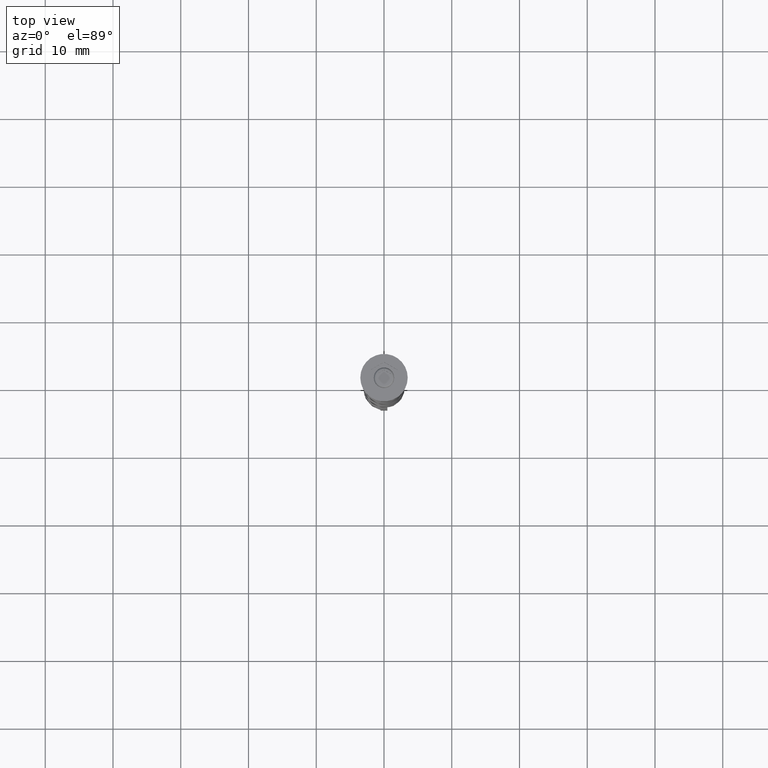
[diagram: clean part render]
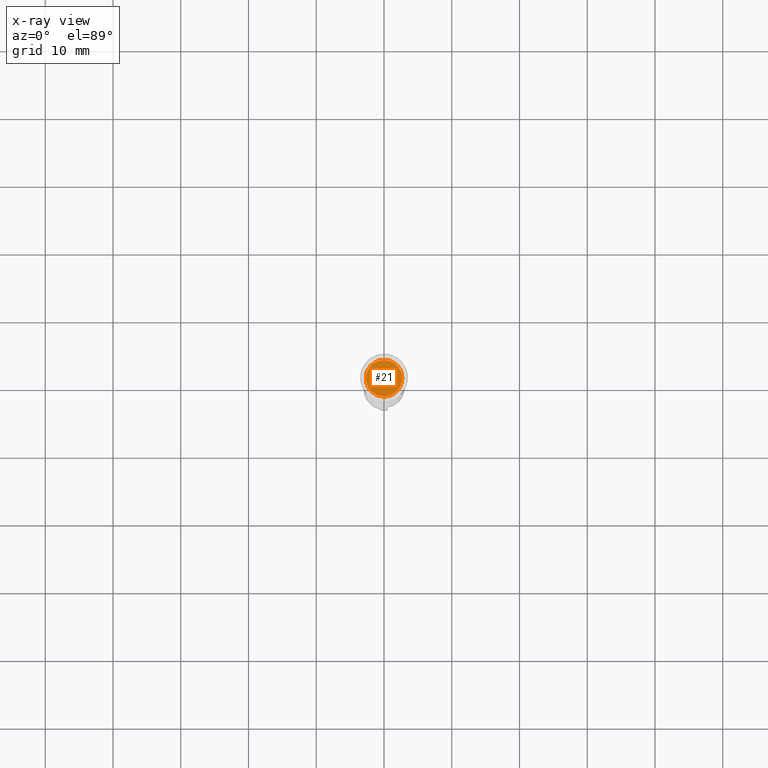
[diagram: x-ray — body ghosted, one internal face saturated and labeled with its STEP entity id]
A machine part, top view, then the same camera in x-ray: the body is ghosted and one INTERNAL B-rep face — a face not visible from any outside direction — is saturated and labeled: STEP entity #21.
In plain terms, the highlighted planar face has unit normal (0, 0, -1).
Its self-contained STEP definition (entity closure, byte-faithful):
#21 = ADVANCED_FACE ( 'NONE', ( #2191 ), #1847, .F. ) ;
#143 = EDGE_LOOP ( 'NONE', ( #2309, #2388 ) ) ;
#418 = AXIS2_PLACEMENT_3D ( 'NONE', #1202, #2501, #2267 ) ;
#603 = EDGE_CURVE ( 'NONE', #1425, #2948, #3316, .T. ) ;
#968 = CARTESIAN_POINT ( 'NONE',  ( -2.700000000000002398, 0.000000000000000000, -5.500000000000000000 ) ) ;
#1096 = DIRECTION ( 'NONE',  ( -1.000000000000000000, 0.000000000000000000, -0.000000000000000000 ) ) ;
#1202 = CARTESIAN_POINT ( 'NONE',  ( 0.000000000000000000, 0.000000000000000000, -5.500000000000000000 ) ) ;
#1327 = CIRCLE ( 'NONE', #2163, 2.700000000000002398 ) ;
#1425 = VERTEX_POINT ( 'NONE', #968 ) ;
#1847 = PLANE ( 'NONE',  #2202 ) ;
#2071 = CARTESIAN_POINT ( 'NONE',  ( 0.000000000000000000, 0.000000000000000000, -5.500000000000000000 ) ) ;
#2153 = CARTESIAN_POINT ( 'NONE',  ( 0.000000000000000000, 0.000000000000000000, -5.500000000000000000 ) ) ;
#2162 = CARTESIAN_POINT ( 'NONE',  ( 2.700000000000002398, 3.490243377569959512E-16, -5.500000000000000000 ) ) ;
#2163 = AXIS2_PLACEMENT_3D ( 'NONE', #2071, #2933, #2611 ) ;
#2176 = DIRECTION ( 'NONE',  ( 0.000000000000000000, 0.000000000000000000, -1.000000000000000000 ) ) ;
#2191 = FACE_OUTER_BOUND ( 'NONE', #143, .T. ) ;
#2202 = AXIS2_PLACEMENT_3D ( 'NONE', #2153, #2176, #1096 ) ;
#2267 = DIRECTION ( 'NONE',  ( -1.000000000000000000, 0.000000000000000000, 0.000000000000000000 ) ) ;
#2309 = ORIENTED_EDGE ( 'NONE', *, *, #603, .T. ) ;
#2388 = ORIENTED_EDGE ( 'NONE', *, *, #3445, .T. ) ;
#2501 = DIRECTION ( 'NONE',  ( -0.000000000000000000, -0.000000000000000000, 1.000000000000000000 ) ) ;
#2611 = DIRECTION ( 'NONE',  ( -1.000000000000000000, 0.000000000000000000, 0.000000000000000000 ) ) ;
#2933 = DIRECTION ( 'NONE',  ( -0.000000000000000000, -0.000000000000000000, 1.000000000000000000 ) ) ;
#2948 = VERTEX_POINT ( 'NONE', #2162 ) ;
#3316 = CIRCLE ( 'NONE', #418, 2.700000000000002398 ) ;
#3445 = EDGE_CURVE ( 'NONE', #2948, #1425, #1327, .T. ) ;